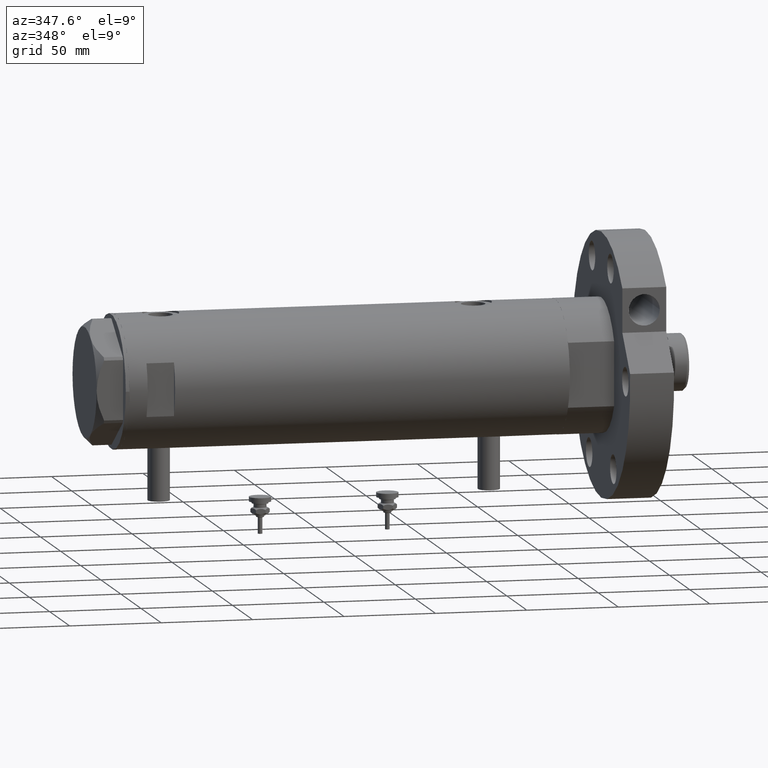
[diagram: clean part render]
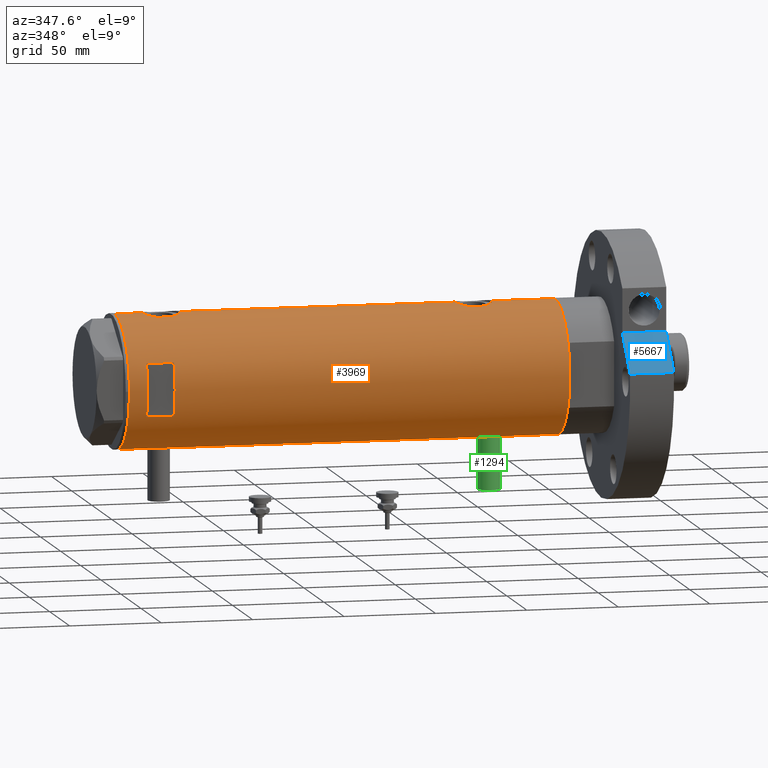
[diagram: same view with three faces highlighted in distinct colors, each labeled with its STEP entity id]
A machine part, auxiliary view with three faces highlighted in distinct colors.
Their STEP definitions:

[orange] entity #3969 — the highlighted cylindrical surface (partial cylindrical patch) has radius 36.5 mm, axis along (-1, -0, 0).
#9 = CARTESIAN_POINT ( 'NONE',  ( 35.52320828895289395, -8.411622242316134646, -81.09772865944610487 ) ) ;
#25 = DIRECTION ( 'NONE',  ( 0.000000000000000000, 0.000000000000000000, 1.000000000000000000 ) ) ;
#28 = EDGE_CURVE ( 'NONE', #5902, #6856, #4608, .T. ) ;
#66 = CARTESIAN_POINT ( 'NONE',  ( -36.30176144752229561, -3.814344296723636951, -89.06801701950256245 ) ) ;
#107 = DIRECTION ( 'NONE',  ( -0.000000000000000000, 0.000000000000000000, -1.000000000000000000 ) ) ;
#112 = CARTESIAN_POINT ( 'NONE',  ( 36.44931971524465553, -1.985988150549293341, 105.2136686053176078 ) ) ;
#143 = CARTESIAN_POINT ( 'NONE',  ( -36.06543684817881257, -5.617774235967367247, -81.33045552028302438 ) ) ;
#180 = CARTESIAN_POINT ( 'NONE',  ( -36.30107494031872051, -3.820993528321233068, -79.13693846463692694 ) ) ;
#214 = CARTESIAN_POINT ( 'NONE',  ( -36.06605150775667568, -5.613853192123348101, -86.87765688272544651 ) ) ;
#218 = ORIENTED_EDGE ( 'NONE', *, *, #6239, .F. ) ;
#256 = LINE ( 'NONE', #4935, #4260 ) ;
#363 = CARTESIAN_POINT ( 'NONE',  ( -36.49297138689434661, -0.8222528563518530786, -77.89066887946569295 ) ) ;
#398 = CARTESIAN_POINT ( 'NONE',  ( -36.01675918113430441, -5.920026275461277798, 94.38560443482110429 ) ) ;
#415 = ORIENTED_EDGE ( 'NONE', *, *, #932, .F. ) ;
#425 = CARTESIAN_POINT ( 'NONE',  ( 36.09633718678917802, -5.417295330713078449, -67.19085132654788595 ) ) ;
#429 = CARTESIAN_POINT ( 'NONE',  ( 36.50000000000000000, 0.000000000000000000, -85.59999999999999432 ) ) ;
#434 = CARTESIAN_POINT ( 'NONE',  ( -35.98821803976956346, -6.090959022952117330, 97.81573883149417270 ) ) ;
#468 = CARTESIAN_POINT ( 'NONE',  ( -35.96794010939611752, -6.209972807992079069, 97.21555548991356943 ) ) ;
#487 = CARTESIAN_POINT ( 'NONE',  ( 35.72742963626381396, -7.471989379615407323, 88.74937739587225849 ) ) ;
#501 = CARTESIAN_POINT ( 'NONE',  ( 35.29999999999999716, -9.282241108697837362, -79.32021504754763441 ) ) ;
#502 = CIRCLE ( 'NONE', #2969, 36.50000000000000000 ) ;
#506 = CARTESIAN_POINT ( 'NONE',  ( -36.01639592019625979, -5.922235714778421034, 98.40796802426915235 ) ) ;
#513 = DIRECTION ( 'NONE',  ( -0.000000000000000000, -0.000000000000000000, -1.000000000000000000 ) ) ;
#532 = CARTESIAN_POINT ( 'NONE',  ( 36.12724769814495573, -5.207618053557754756, -67.05935879511537223 ) ) ;
#545 = CARTESIAN_POINT ( 'NONE',  ( -36.50000000000000000, 1.603939656238031057E-15, 102.6500000000000199 ) ) ;
#549 = CARTESIAN_POINT ( 'NONE',  ( -36.50000000000000000, 4.469960816887838430E-15, -120.4000000000000057 ) ) ;
#564 = CARTESIAN_POINT ( 'NONE',  ( 36.12724769814495573, -5.207618053557754756, 103.9406412048846704 ) ) ;
#645 = CARTESIAN_POINT ( 'NONE',  ( 36.09633718678917802, -5.417295330713078449, 103.8091486734521283 ) ) ;
#672 = CARTESIAN_POINT ( 'NONE',  ( -35.98855750525641639, -6.088954600884530777, -85.52430226150170256 ) ) ;
#719 = CARTESIAN_POINT ( 'NONE',  ( -36.02823773219768810, -5.849994928883552880, -86.30955101485642444 ) ) ;
#729 = CARTESIAN_POINT ( 'NONE',  ( 35.72583162417570435, -7.484316398521980496, 102.0504264371950143 ) ) ;
#774 = ORIENTED_EDGE ( 'NONE', *, *, #901, .T. ) ;
#797 = ORIENTED_EDGE ( 'NONE', *, *, #3215, .F. ) ;
#807 = B_SPLINE_CURVE_WITH_KNOTS ( 'NONE', 3,
 ( #894, #4413, #4519, #4561, #6207, #3385, #1013, #3419, #3958, #532, #425, #6925, #3460, #2204, #2313, #7555, #5138, #5777 ),
 .UNSPECIFIED., .F., .F.,
 ( 4, 2, 2, 2, 2, 2, 2, 2, 4 ),
 ( 0.01190956515753145012, 0.01339852714138290227, 0.01488748912523435441, 0.01637645110908580656, 0.01712093210101153090, 0.01786541309293725871, 0.01935437507678870739, 0.02084333706064015260, 0.02382126102834301526 ),
 .UNSPECIFIED. ) ;
#854 = VERTEX_POINT ( 'NONE', #7006 ) ;
#894 = CARTESIAN_POINT ( 'NONE',  ( 36.50000000000000000, 4.344614706140975428E-19, -65.60000000000000853 ) ) ;
#901 = EDGE_CURVE ( 'NONE', #5500, #2793, #6355, .T. ) ;
#932 = EDGE_CURVE ( 'NONE', #6315, #3876, #3515, .T. ) ;
#940 = EDGE_CURVE ( 'NONE', #1942, #5902, #3516, .T. ) ;
#969 = ORIENTED_EDGE ( 'NONE', *, *, #28, .F. ) ;
#975 = EDGE_CURVE ( 'NONE', #4475, #1970, #5960, .T. ) ;
#984 = CARTESIAN_POINT ( 'NONE',  ( -36.19599073318030236, -4.702920041824403263, 100.5215383167658274 ) ) ;
#1013 = CARTESIAN_POINT ( 'NONE',  ( 36.29582892817134621, -3.881628320031159873, -66.37065565465010764 ) ) ;
#1025 = CARTESIAN_POINT ( 'NONE',  ( -36.50000000000000000, 1.603939656238031057E-15, 102.6500000000000199 ) ) ;
#1054 = CARTESIAN_POINT ( 'NONE',  ( 36.50000000000000711, -0.5031001875915692700, -85.59999999999999432 ) ) ;
#1078 = CARTESIAN_POINT ( 'NONE',  ( 35.29999999999999716, -9.282241108697837362, 91.67978495245237980 ) ) ;
#1087 = ORIENTED_EDGE ( 'NONE', *, *, #4711, .T. ) ;
#1098 = CARTESIAN_POINT ( 'NONE',  ( -35.96087392089862789, -6.250243747806517369, 96.80917490776182888 ) ) ;
#1153 = ORIENTED_EDGE ( 'NONE', *, *, #1193, .F. ) ;
#1172 = CARTESIAN_POINT ( 'NONE',  ( 35.79656810172926384, -7.133411935499478496, -82.61254878557676307 ) ) ;
#1191 = CARTESIAN_POINT ( 'NONE',  ( -36.50000000000000000, 4.469960816887838430E-15, -120.4000000000000057 ) ) ;
#1193 = EDGE_CURVE ( 'NONE', #2616, #4398, #5650, .T. ) ;
#1231 = CARTESIAN_POINT ( 'NONE',  ( 36.41856252531823657, -2.482507212621166470, 85.70043487153495221 ) ) ;
#1236 = CARTESIAN_POINT ( 'NONE',  ( 36.50000000000000711, -0.4962708696651116913, 105.4000000000000199 ) ) ;
#1245 = CARTESIAN_POINT ( 'NONE',  ( 0.000000000000000000, 0.000000000000000000, 95.40000000000014779 ) ) ;
#1306 = VERTEX_POINT ( 'NONE', #6802 ) ;
#1314 = ORIENTED_EDGE ( 'NONE', *, *, #6376, .T. ) ;
#1339 = CARTESIAN_POINT ( 'NONE',  ( -36.19599073318030236, -4.702920041824403263, -79.97846168323422944 ) ) ;
#1345 = CARTESIAN_POINT ( 'NONE',  ( 36.50000000000000000, 0.000000000000000000, 85.40000000000001990 ) ) ;
#1394 = DIRECTION ( 'NONE',  ( 1.000000000000000000, 0.000000000000000000, 0.000000000000000000 ) ) ;
#1419 = CARTESIAN_POINT ( 'NONE',  ( 35.29999999999999716, -9.282241108697837362, -71.87978495245236843 ) ) ;
#1428 = CARTESIAN_POINT ( 'NONE',  ( 0.000000000000000000, 0.000000000000000000, -120.4000000000000057 ) ) ;
#1461 = CARTESIAN_POINT ( 'NONE',  ( -36.50000000000000000, 1.603939656238031057E-15, -77.85000000000000853 ) ) ;
#1495 = CARTESIAN_POINT ( 'NONE',  ( -36.46417279006304568, -1.628689148039109247, -78.06246061306184458 ) ) ;
#1523 = CARTESIAN_POINT ( 'NONE',  ( -36.50000000000000000, 4.469960816887838430E-15, -120.4000000000000057 ) ) ;
#1559 = CARTESIAN_POINT ( 'NONE',  ( -35.99695583620881933, -6.039273428153905776, 94.77775555012246400 ) ) ;
#1582 = CARTESIAN_POINT ( 'NONE',  ( 36.50000000000000000, 4.344614706140975428E-19, 105.4000000000000057 ) ) ;
#1632 = CARTESIAN_POINT ( 'NONE',  ( 36.44881677724178104, -1.995085670027227032, -85.41180345369463112 ) ) ;
#1634 = EDGE_CURVE ( 'NONE', #1970, #2231, #6276, .T. ) ;
#1667 = CARTESIAN_POINT ( 'NONE',  ( 36.18850502651835654, -4.779575967213809840, -84.39779152890152147 ) ) ;
#1691 = CARTESIAN_POINT ( 'NONE',  ( 36.00068527486601511, -6.030855700422090848, 87.40798672872648467 ) ) ;
#1711 = CARTESIAN_POINT ( 'NONE',  ( -35.96095902952617251, -6.249754054240900913, 95.98341234579532966 ) ) ;
#1733 = CARTESIAN_POINT ( 'NONE',  ( 36.29527920868844859, -3.886508670267145416, 86.17283724169139703 ) ) ;
#1760 = EDGE_CURVE ( 'NONE', #6643, #3876, #3013, .T. ) ;
#1803 = CARTESIAN_POINT ( 'NONE',  ( -35.99659093586380010, -6.041447834568799635, -82.48577587985177217 ) ) ;
#1812 = CARTESIAN_POINT ( 'NONE',  ( 14.49137674618942739, -33.50000000000000000, 110.3999999999999915 ) ) ;
#1842 = CARTESIAN_POINT ( 'NONE',  ( -36.26692673949090562, -4.128477002029503851, -88.80999987432169007 ) ) ;
#1863 = AXIS2_PLACEMENT_3D ( 'NONE', #4616, #3979, #6956 ) ;
#1885 = CARTESIAN_POINT ( 'NONE',  ( -36.16096637594732499, -4.968588355849258953, -87.91334492817760804 ) ) ;
#1906 = CARTESIAN_POINT ( 'NONE',  ( 0.000000000000000000, 0.000000000000000000, -120.4000000000000057 ) ) ;
#1923 = CARTESIAN_POINT ( 'NONE',  ( -36.16125812922425098, -4.962923794285024393, -80.29553914089240152 ) ) ;
#1942 = VERTEX_POINT ( 'NONE', #1812 ) ;
#1945 = EDGE_CURVE ( 'NONE', #5500, #6048, #2730, .T. ) ;
#1962 = CARTESIAN_POINT ( 'NONE',  ( -36.39621039793029666, -2.776267550998806843, -78.48569246893224260 ) ) ;
#1970 = VERTEX_POINT ( 'NONE', #4125 ) ;
#1974 = DIRECTION ( 'NONE',  ( 0.000000000000000000, 0.000000000000000000, 1.000000000000000000 ) ) ;
#2006 = VERTEX_POINT ( 'NONE', #6458 ) ;
#2047 = EDGE_CURVE ( 'NONE', #4398, #4475, #5084, .T. ) ;
#2074 = LINE ( 'NONE', #2181, #3318 ) ;
#2110 = CARTESIAN_POINT ( 'NONE',  ( -36.49999999999999289, -0.4082012689449562859, 90.15000000000001990 ) ) ;
#2113 = EDGE_CURVE ( 'NONE', #1306, #1942, #256, .T. ) ;
#2147 = CARTESIAN_POINT ( 'NONE',  ( -36.36635911126388265, -3.125815113635437292, 90.98394399592098125 ) ) ;
#2174 = CARTESIAN_POINT ( 'NONE',  ( -36.16096637594732499, -4.968588355849258953, 92.58665507182242038 ) ) ;
#2181 = CARTESIAN_POINT ( 'NONE',  ( -36.50000000000000000, 4.469960816887838430E-15, -120.4000000000000057 ) ) ;
#2204 = CARTESIAN_POINT ( 'NONE',  ( 35.79638309643555516, -7.141827709208434349, -68.58298073030452713 ) ) ;
#2212 = CARTESIAN_POINT ( 'NONE',  ( -36.30107494031872051, -3.820993528321233068, 101.3630615353631157 ) ) ;
#2231 = VERTEX_POINT ( 'NONE', #545 ) ;
#2261 = DIRECTION ( 'NONE',  ( 0.000000000000000000, 0.000000000000000000, 1.000000000000000000 ) ) ;
#2271 = CARTESIAN_POINT ( 'NONE',  ( 35.83108131285856501, -6.958268797611358636, 88.21369216627178389 ) ) ;
#2282 = CARTESIAN_POINT ( 'NONE',  ( 35.29999999999999716, -9.282241108697837362, 91.67978495245237980 ) ) ;
#2306 = CARTESIAN_POINT ( 'NONE',  ( 36.12792682573228831, -5.214735277442335004, 86.85306882011300900 ) ) ;
#2313 = CARTESIAN_POINT ( 'NONE',  ( 35.72583162417570435, -7.484316398521980496, -68.94957356280497152 ) ) ;
#2332 = CARTESIAN_POINT ( 'NONE',  ( 35.29999999999999716, -9.282241108697837362, -120.4000000000000057 ) ) ;
#2347 = CIRCLE ( 'NONE', #2946, 36.50000000000000000 ) ;
#2361 = CARTESIAN_POINT ( 'NONE',  ( 36.29527920868844859, -3.886508670267145416, -84.82716275830861719 ) ) ;
#2431 = CARTESIAN_POINT ( 'NONE',  ( -14.49137674618942739, -33.50000000000000000, 95.40000000000000568 ) ) ;
#2442 = DIRECTION ( 'NONE',  ( 0.000000000000000000, 0.000000000000000000, 1.000000000000000000 ) ) ;
#2466 = DIRECTION ( 'NONE',  ( 1.000000000000000000, 0.000000000000000000, 0.000000000000000000 ) ) ;
#2471 = CARTESIAN_POINT ( 'NONE',  ( 36.21540437201188922, -4.554727782332258279, 104.3059762908862638 ) ) ;
#2485 = DIRECTION ( 'NONE',  ( 1.000000000000000000, 0.000000000000000000, 0.000000000000000000 ) ) ;
#2492 = CARTESIAN_POINT ( 'NONE',  ( 35.29999999999999716, -9.282241108697837362, 99.12021504754764578 ) ) ;
#2501 = CARTESIAN_POINT ( 'NONE',  ( -36.09514898390870030, -5.426114745500164815, -80.97161347053862812 ) ) ;
#2509 = CARTESIAN_POINT ( 'NONE',  ( 36.41918031349423757, -2.473644131148923009, 105.1018834546319027 ) ) ;
#2544 = CARTESIAN_POINT ( 'NONE',  ( 36.48960339336947101, -1.002724032967601708, 85.43775134026506635 ) ) ;
#2591 = CARTESIAN_POINT ( 'NONE',  ( 36.50000000000000000, 4.344614706140975428E-19, -65.60000000000000853 ) ) ;
#2616 = VERTEX_POINT ( 'NONE', #1523 ) ;
#2718 = CARTESIAN_POINT ( 'NONE',  ( -36.06605150775667568, -5.613853192123348101, 93.62234311727458191 ) ) ;
#2724 = CARTESIAN_POINT ( 'NONE',  ( -36.44454782745417276, -2.020757099930494682, -78.18214135579003710 ) ) ;
#2730 = B_SPLINE_CURVE_WITH_KNOTS ( 'NONE', 3,
 ( #6547, #1236, #4174, #112, #2509, #3570, #5240, #2471, #5892, #564, #645, #7008, #5317, #3001, #729, #6513, #4103, #3072 ),
 .UNSPECIFIED., .F., .F.,
 ( 4, 2, 2, 2, 2, 2, 2, 2, 4 ),
 ( 0.01190956515753145012, 0.01339852714138290227, 0.01488748912523435441, 0.01637645110908580656, 0.01712093210101153090, 0.01786541309293725871, 0.01935437507678870739, 0.02084333706064015260, 0.02382126102834301526 ),
 .UNSPECIFIED. ) ;
#2754 = CARTESIAN_POINT ( 'NONE',  ( -35.96816095843705341, -6.208699946936198977, 95.57503622872209803 ) ) ;
#2793 = VERTEX_POINT ( 'NONE', #5354 ) ;
#2797 = AXIS2_PLACEMENT_3D ( 'NONE', #4863, #107, #2466 ) ;
#2825 = CARTESIAN_POINT ( 'NONE',  ( -35.99659093586380010, -6.041447834568799635, 98.01422412014827046 ) ) ;
#2832 = ORIENTED_EDGE ( 'NONE', *, *, #4109, .F. ) ;
#2857 = CARTESIAN_POINT ( 'NONE',  ( 36.48960339336947101, -1.002724032967601708, -85.56224865973499050 ) ) ;
#2875 = CARTESIAN_POINT ( 'NONE',  ( -14.49137674618942739, -33.50000000000000000, 110.3999999999999915 ) ) ;
#2906 = CARTESIAN_POINT ( 'NONE',  ( 35.29999999999999716, -9.282241108697837362, -120.4000000000000057 ) ) ;
#2946 = AXIS2_PLACEMENT_3D ( 'NONE', #1245, #5897, #3006 ) ;
#2955 = VECTOR ( 'NONE', #2442, 1000.000000000000000 ) ;
#2966 = CARTESIAN_POINT ( 'NONE',  ( -36.50000000000000000, 4.469960493350315609E-15, -90.35000000000000853 ) ) ;
#2969 = AXIS2_PLACEMENT_3D ( 'NONE', #1428, #1974, #1394 ) ;
#2992 = CARTESIAN_POINT ( 'NONE',  ( -36.35061318816141096, -3.303361544904982239, -89.40964041943020391 ) ) ;
#2996 = ORIENTED_EDGE ( 'NONE', *, *, #2047, .F. ) ;
#3001 = CARTESIAN_POINT ( 'NONE',  ( 35.79638309643555516, -7.141827709208434349, 102.4170192696955013 ) ) ;
#3006 = DIRECTION ( 'NONE',  ( 1.776356839400250465E-15, 1.000000000000000000, 4.562560375171875891E-15 ) ) ;
#3013 = LINE ( 'NONE', #5219, #4137 ) ;
#3021 = CARTESIAN_POINT ( 'NONE',  ( -35.96816095843705341, -6.208699946936198977, -84.92496377127787355 ) ) ;
#3041 = CARTESIAN_POINT ( 'NONE',  ( 36.50000000000000000, 0.000000000000000000, -120.4000000000000057 ) ) ;
#3061 = CARTESIAN_POINT ( 'NONE',  ( -36.01675918113430441, -5.920026275461277798, -86.11439556517892413 ) ) ;
#3072 = CARTESIAN_POINT ( 'NONE',  ( 35.29999999999999716, -9.282241108697837362, 99.12021504754764578 ) ) ;
#3135 = CARTESIAN_POINT ( 'NONE',  ( -36.44621655743049615, -2.016281777336074832, 90.47017023300885796 ) ) ;
#3215 = EDGE_CURVE ( 'NONE', #2231, #854, #2074, .T. ) ;
#3283 = CARTESIAN_POINT ( 'NONE',  ( -36.21356728133255842, -4.566014386638764577, 100.6726266076474730 ) ) ;
#3318 = VECTOR ( 'NONE', #7351, 1000.000000000000000 ) ;
#3329 = CARTESIAN_POINT ( 'NONE',  ( -36.40915499150419521, -2.580495338846545472, 90.70394986644524238 ) ) ;
#3385 = CARTESIAN_POINT ( 'NONE',  ( 36.34247810649306132, -3.420510937483959513, -66.19013481598274495 ) ) ;
#3398 = VECTOR ( 'NONE', #4743, 1000.000000000000000 ) ;
#3419 = CARTESIAN_POINT ( 'NONE',  ( 36.21540437201188922, -4.554727782332258279, -66.69402370911377886 ) ) ;
#3429 = CARTESIAN_POINT ( 'NONE',  ( -36.06543684817881257, -5.617774235967367247, 99.16954447971704667 ) ) ;
#3460 = CARTESIAN_POINT ( 'NONE',  ( 35.93373217836897737, -6.415110096330620237, -67.91295733644906818 ) ) ;
#3474 = ORIENTED_EDGE ( 'NONE', *, *, #2113, .F. ) ;
#3488 = CARTESIAN_POINT ( 'NONE',  ( 35.79656810172926384, -7.133411935499478496, 88.38745121442323693 ) ) ;
#3500 = CARTESIAN_POINT ( 'NONE',  ( 36.34184199234172041, -3.427106516421255744, -85.00740913680034794 ) ) ;
#3515 = B_SPLINE_CURVE_WITH_KNOTS ( 'NONE', 3,
 ( #1078, #5656, #4587, #5733, #487, #3488, #2271, #6392, #1691, #2306, #6963, #1733, #4064, #1231, #4170, #2544, #6582, #1345 ),
 .UNSPECIFIED., .F., .F.,
 ( 4, 2, 2, 2, 2, 2, 2, 2, 4 ),
 ( -0.01189883390545606531, -0.008924125429092034240, -0.008180448310001031675, -0.007436771190910029979, -0.005949416952728023983, -0.004462062714546017987, -0.002974708476364010257, -0.001487354238182005128, 1.734723475976807094E-18 ),
 .UNSPECIFIED. ) ;
#3516 = CIRCLE ( 'NONE', #2797, 36.50000000000000000 ) ;
#3561 = CARTESIAN_POINT ( 'NONE',  ( -36.49999999999999289, -0.4082012689449562859, -90.34999999999998010 ) ) ;
#3570 = CARTESIAN_POINT ( 'NONE',  ( 36.34247810649306132, -3.420510937483959513, 104.8098651840172977 ) ) ;
#3597 = CARTESIAN_POINT ( 'NONE',  ( -36.39558535855674393, -2.764807686268001774, -89.70894118545612628 ) ) ;
#3635 = CARTESIAN_POINT ( 'NONE',  ( -36.49315367594273596, -0.8144497809045447845, -90.31039785554752086 ) ) ;
#3715 = CARTESIAN_POINT ( 'NONE',  ( -36.49315367594273596, -0.8144497809045447845, 90.18960214445247914 ) ) ;
#3717 = CARTESIAN_POINT ( 'NONE',  ( -36.36656776002988778, -3.137002187003158582, -78.67863590726369694 ) ) ;
#3774 = CARTESIAN_POINT ( 'NONE',  ( 36.50000000000000000, 0.000000000000000000, -120.4000000000000057 ) ) ;
#3876 = VERTEX_POINT ( 'NONE', #6523 ) ;
#3893 = CARTESIAN_POINT ( 'NONE',  ( -36.39558535855674393, -2.764807686268001774, 90.79105881454391636 ) ) ;
#3958 = CARTESIAN_POINT ( 'NONE',  ( 36.18674680775578167, -4.776679548204626258, -66.81107683068754000 ) ) ;
#3968 = CARTESIAN_POINT ( 'NONE',  ( -36.26616882068471170, -4.135065845178865551, 101.1041505594009635 ) ) ;
#3969 = ADVANCED_FACE ( 'NONE', ( #5327, #5977 ), #5938, .T. ) ;
#3979 = DIRECTION ( 'NONE',  ( 0.000000000000000000, 0.000000000000000000, 1.000000000000000000 ) ) ;
#4019 = CARTESIAN_POINT ( 'NONE',  ( 36.50000000000000000, 0.000000000000000000, -120.4000000000000057 ) ) ;
#4039 = CARTESIAN_POINT ( 'NONE',  ( -36.16125812922425098, -4.962923794285024393, 100.2044608591076127 ) ) ;
#4064 = CARTESIAN_POINT ( 'NONE',  ( 36.34184199234172041, -3.427106516421255744, 85.99259086319968048 ) ) ;
#4073 = CARTESIAN_POINT ( 'NONE',  ( 35.39794035667548400, -8.909777761736840773, -80.24954159089453753 ) ) ;
#4103 = CARTESIAN_POINT ( 'NONE',  ( 35.39807338191549491, -8.909271871950329214, 100.0508038273278544 ) ) ;
#4109 = EDGE_CURVE ( 'NONE', #6643, #7326, #807, .T. ) ;
#4120 = LINE ( 'NONE', #2332, #5268 ) ;
#4125 = CARTESIAN_POINT ( 'NONE',  ( -36.50000000000000000, 4.469960493350315609E-15, 90.15000000000000568 ) ) ;
#4137 = VECTOR ( 'NONE', #6446, 1000.000000000000000 ) ;
#4165 = CARTESIAN_POINT ( 'NONE',  ( -36.09582946723050867, -5.421573071064194060, -87.23608278370488733 ) ) ;
#4170 = CARTESIAN_POINT ( 'NONE',  ( 36.44881677724178104, -1.995085670027227032, 85.58819654630534046 ) ) ;
#4174 = CARTESIAN_POINT ( 'NONE',  ( 36.48988302519020266, -0.9927202255321166957, 105.3632698941130172 ) ) ;
#4200 = CARTESIAN_POINT ( 'NONE',  ( -36.02782481185206365, -5.852531070448506512, -81.89722991047811718 ) ) ;
#4260 = VECTOR ( 'NONE', #7238, 1000.000000000000000 ) ;
#4272 = CARTESIAN_POINT ( 'NONE',  ( -36.43335814606993495, -2.212659578761325463, -78.25123600830491455 ) ) ;
#4273 = ORIENTED_EDGE ( 'NONE', *, *, #1634, .F. ) ;
#4349 = CARTESIAN_POINT ( 'NONE',  ( -36.47262891311153510, -1.427622242603855396, -78.01175370788301677 ) ) ;
#4384 = ORIENTED_EDGE ( 'NONE', *, *, #5761, .F. ) ;
#4387 = CARTESIAN_POINT ( 'NONE',  ( -36.50000000000001421, -0.4136690418839317762, -77.85000000000002274 ) ) ;
#4398 = VERTEX_POINT ( 'NONE', #2966 ) ;
#4413 = CARTESIAN_POINT ( 'NONE',  ( 36.50000000000000711, -0.4962708696651116913, -65.60000000000000853 ) ) ;
#4464 = CARTESIAN_POINT ( 'NONE',  ( -36.09582946723050867, -5.421573071064194060, 93.26391721629518372 ) ) ;
#4475 = VERTEX_POINT ( 'NONE', #1461 ) ;
#4494 = CARTESIAN_POINT ( 'NONE',  ( -36.30176144752229561, -3.814344296723636951, 91.43198298049746597 ) ) ;
#4519 = CARTESIAN_POINT ( 'NONE',  ( 36.48988302519020266, -0.9927202255321166957, -65.63673010588698276 ) ) ;
#4530 = CARTESIAN_POINT ( 'NONE',  ( -36.09514898390870030, -5.426114745500164815, 99.52838652946141451 ) ) ;
#4552 = DIRECTION ( 'NONE',  ( 0.000000000000000000, 0.000000000000000000, 1.000000000000000000 ) ) ;
#4561 = CARTESIAN_POINT ( 'NONE',  ( 36.44931971524465553, -1.985988150549293341, -65.78633139468234958 ) ) ;
#4583 = ORIENTED_EDGE ( 'NONE', *, *, #7083, .T. ) ;
#4587 = CARTESIAN_POINT ( 'NONE',  ( 35.52320828895289395, -8.411622242316134646, 89.90227134055388092 ) ) ;
#4603 = CARTESIAN_POINT ( 'NONE',  ( -36.36656776002988778, -3.137002187003158582, 101.8213640927363457 ) ) ;
#4608 = LINE ( 'NONE', #6270, #6680 ) ;
#4616 = CARTESIAN_POINT ( 'NONE',  ( 0.000000000000000000, 0.000000000000000000, 120.4000000000000057 ) ) ;
#4645 = EDGE_CURVE ( 'NONE', #6280, #7326, #4120, .T. ) ;
#4711 = EDGE_CURVE ( 'NONE', #6315, #6048, #7538, .T. ) ;
#4721 = LINE ( 'NONE', #3041, #2955 ) ;
#4737 = CARTESIAN_POINT ( 'NONE',  ( -36.44621655743049615, -2.016281777336074832, -90.02982976699115625 ) ) ;
#4743 = DIRECTION ( 'NONE',  ( 0.000000000000000000, 0.000000000000000000, 1.000000000000000000 ) ) ;
#4746 = B_SPLINE_CURVE_WITH_KNOTS ( 'NONE', 3,
 ( #6862, #4073, #9, #6404, #5212, #1172, #6368, #7526, #6897, #6297, #1667, #2361, #3500, #5819, #1632, #2857, #1054, #429 ),
 .UNSPECIFIED., .F., .F.,
 ( 4, 2, 2, 2, 2, 2, 2, 2, 4 ),
 ( -0.01189883390545606531, -0.008924125429092034240, -0.008180448310001031675, -0.007436771190910029979, -0.005949416952728023983, -0.004462062714546017987, -0.002974708476364010257, -0.001487354238182005128, 1.734723475976807094E-18 ),
 .UNSPECIFIED. ) ;
#4824 = CARTESIAN_POINT ( 'NONE',  ( -35.99695583620881933, -6.039273428153905776, -85.72224444987756442 ) ) ;
#4863 = CARTESIAN_POINT ( 'NONE',  ( 0.000000000000000000, 0.000000000000000000, 110.3999999999999915 ) ) ;
#4935 = CARTESIAN_POINT ( 'NONE',  ( 14.49137674618942739, -33.50000000000000000, -120.4000000000000057 ) ) ;
#4939 = ORIENTED_EDGE ( 'NONE', *, *, #5910, .F. ) ;
#5072 = CARTESIAN_POINT ( 'NONE',  ( -36.49297138689434661, -0.8222528563518530786, 102.6093311205343923 ) ) ;
#5084 = B_SPLINE_CURVE_WITH_KNOTS ( 'NONE', 3,
 ( #5307, #3561, #3635, #5922, #4737, #5954, #3597, #5883, #2992, #66, #1842, #7075, #1885, #4165, #214, #719, #3061, #4824, #672, #3021, #7160, #7197, #5387, #7038, #1803, #5345, #4200, #143, #2501, #6039, #1923, #1339, #6002, #5421, #180, #3717, #1962, #4272, #2724, #1495, #4349, #363, #4387, #6076 ),
 .UNSPECIFIED., .F., .F.,
 ( 4, 2, 2, 2, 2, 2, 2, 2, 2, 2, 2, 2, 2, 2, 2, 2, 2, 2, 2, 2, 2, 4 ),
 ( 0.01957644481942643136, 0.02079966591703043266, 0.02202288701463443049, 0.02263449756343642941, 0.02324610811223842832, 0.02446932920984242615, 0.02569255030744642398, 0.02691577140505042529, 0.02752738195385242420, 0.02813899250265442659, 0.02936221360025846605, 0.03058543469786250205, 0.03119704524666452178, 0.03180865579546654498, 0.03303187689307057751, 0.03364348744187262152, 0.03425509799067465166, 0.03547831908827869807, 0.03670154018588274447, 0.03731315073468477461, 0.03792476128348679781, 0.03914798238109084422 ),
 .UNSPECIFIED. ) ;
#5105 = CARTESIAN_POINT ( 'NONE',  ( -36.35061318816141096, -3.303361544904982239, 91.09035958056982452 ) ) ;
#5138 = CARTESIAN_POINT ( 'NONE',  ( 35.39807338191549491, -8.909271871950329214, -70.94919617267213141 ) ) ;
#5148 = CARTESIAN_POINT ( 'NONE',  ( -36.50000000000001421, -0.4136690418839317762, 102.6500000000000341 ) ) ;
#5212 = CARTESIAN_POINT ( 'NONE',  ( 35.72742963626381396, -7.471989379615407323, -82.25062260412775572 ) ) ;
#5219 = CARTESIAN_POINT ( 'NONE',  ( 36.50000000000000000, 0.000000000000000000, -120.4000000000000057 ) ) ;
#5240 = CARTESIAN_POINT ( 'NONE',  ( 36.29582892817134621, -3.881628320031159873, 104.6293443453499066 ) ) ;
#5268 = VECTOR ( 'NONE', #25, 1000.000000000000000 ) ;
#5307 = CARTESIAN_POINT ( 'NONE',  ( -36.50000000000000000, 4.469960493350315609E-15, -90.35000000000000853 ) ) ;
#5317 = CARTESIAN_POINT ( 'NONE',  ( 35.93373217836897737, -6.415110096330620237, 103.0870426635509176 ) ) ;
#5327 = FACE_OUTER_BOUND ( 'NONE', #6359, .T. ) ;
#5345 = CARTESIAN_POINT ( 'NONE',  ( -36.01639592019625979, -5.922235714778421034, -82.09203197573087607 ) ) ;
#5354 = CARTESIAN_POINT ( 'NONE',  ( 36.50000000000000000, 0.000000000000000000, 120.4000000000000057 ) ) ;
#5387 = CARTESIAN_POINT ( 'NONE',  ( -35.96794010939611752, -6.209972807992079069, -83.28444451008648741 ) ) ;
#5421 = CARTESIAN_POINT ( 'NONE',  ( -36.26616882068471170, -4.135065845178865551, -79.39584944059912175 ) ) ;
#5426 = VERTEX_POINT ( 'NONE', #3774 ) ;
#5495 = ORIENTED_EDGE ( 'NONE', *, *, #4645, .T. ) ;
#5500 = VERTEX_POINT ( 'NONE', #1582 ) ;
#5600 = CARTESIAN_POINT ( 'NONE',  ( -36.39621039793029666, -2.776267550998806843, 102.0143075310678000 ) ) ;
#5641 = CARTESIAN_POINT ( 'NONE',  ( -36.26692673949090562, -4.128477002029503851, 91.69000012567835256 ) ) ;
#5650 = LINE ( 'NONE', #549, #5952 ) ;
#5656 = CARTESIAN_POINT ( 'NONE',  ( 35.39794035667548400, -8.909777761736840773, 90.75045840910549089 ) ) ;
#5733 = CARTESIAN_POINT ( 'NONE',  ( 35.69273631926343882, -7.635692914629149008, 88.93799804348513760 ) ) ;
#5761 = EDGE_CURVE ( 'NONE', #6856, #1306, #2347, .T. ) ;
#5777 = CARTESIAN_POINT ( 'NONE',  ( 35.29999999999999716, -9.282241108697837362, -71.87978495245236843 ) ) ;
#5819 = CARTESIAN_POINT ( 'NONE',  ( 36.41856252531823657, -2.482507212621166470, -85.29956512846501937 ) ) ;
#5883 = CARTESIAN_POINT ( 'NONE',  ( -36.36635911126388265, -3.125815113635437292, -89.51605600407906138 ) ) ;
#5892 = CARTESIAN_POINT ( 'NONE',  ( 36.18674680775578167, -4.776679548204626258, 104.1889231693125026 ) ) ;
#5897 = DIRECTION ( 'NONE',  ( -0.000000000000000000, -4.625929269271492422E-15, 1.000000000000000000 ) ) ;
#5902 = VERTEX_POINT ( 'NONE', #2875 ) ;
#5910 = EDGE_CURVE ( 'NONE', #854, #2793, #7476, .T. ) ;
#5922 = CARTESIAN_POINT ( 'NONE',  ( -36.46614432713124643, -1.622933015999963313, -90.14966597386847980 ) ) ;
#5938 = CYLINDRICAL_SURFACE ( 'NONE', #7096, 36.50000000000000000 ) ;
#5952 = VECTOR ( 'NONE', #6272, 1000.000000000000000 ) ;
#5954 = CARTESIAN_POINT ( 'NONE',  ( -36.40915499150419521, -2.580495338846545472, -89.79605013355480025 ) ) ;
#5960 = LINE ( 'NONE', #1191, #3398 ) ;
#5977 = FACE_BOUND ( 'NONE', #7490, .T. ) ;
#6002 = CARTESIAN_POINT ( 'NONE',  ( -36.21356728133255842, -4.566014386638764577, -79.82737339235254126 ) ) ;
#6035 = CARTESIAN_POINT ( 'NONE',  ( -36.46614432713124643, -1.622933015999963313, 90.35033402613153442 ) ) ;
#6039 = CARTESIAN_POINT ( 'NONE',  ( -36.14410773716529235, -5.085921866747754372, -80.46164121579529649 ) ) ;
#6048 = VERTEX_POINT ( 'NONE', #2492 ) ;
#6076 = CARTESIAN_POINT ( 'NONE',  ( -36.50000000000000000, 1.603939656238031057E-15, -77.85000000000000853 ) ) ;
#6082 = VECTOR ( 'NONE', #4552, 1000.000000000000000 ) ;
#6146 = CARTESIAN_POINT ( 'NONE',  ( -36.50000000000000000, 4.469960493350315609E-15, 90.15000000000000568 ) ) ;
#6207 = CARTESIAN_POINT ( 'NONE',  ( 36.41918031349423757, -2.473644131148923009, -65.89811654536809726 ) ) ;
#6216 = CARTESIAN_POINT ( 'NONE',  ( -36.02823773219768810, -5.849994928883552880, 94.19044898514356134 ) ) ;
#6223 = ORIENTED_EDGE ( 'NONE', *, *, #1945, .F. ) ;
#6239 = EDGE_CURVE ( 'NONE', #6280, #2006, #4746, .T. ) ;
#6263 = CARTESIAN_POINT ( 'NONE',  ( -35.98855750525641639, -6.088954600884530777, 94.97569773849834007 ) ) ;
#6270 = CARTESIAN_POINT ( 'NONE',  ( -14.49137674618942739, -33.50000000000000000, -120.4000000000000057 ) ) ;
#6272 = DIRECTION ( 'NONE',  ( 0.000000000000000000, 0.000000000000000000, 1.000000000000000000 ) ) ;
#6276 = B_SPLINE_CURVE_WITH_KNOTS ( 'NONE', 3,
 ( #6146, #2110, #3715, #6035, #3135, #3329, #3893, #2147, #5105, #4494, #5641, #7454, #2174, #4464, #2718, #6216, #398, #1559, #6263, #2754, #1711, #1098, #468, #434, #2825, #506, #6372, #3429, #4530, #6940, #4039, #984, #3283, #3968, #2212, #4603, #5600, #7421, #6301, #6827, #7386, #5072, #5148, #1025 ),
 .UNSPECIFIED., .F., .F.,
 ( 4, 2, 2, 2, 2, 2, 2, 2, 2, 2, 2, 2, 2, 2, 2, 2, 2, 2, 2, 2, 2, 4 ),
 ( 0.01957644481942643136, 0.02079966591703043266, 0.02202288701463443049, 0.02263449756343642941, 0.02324610811223842832, 0.02446932920984242615, 0.02569255030744642398, 0.02691577140505042529, 0.02752738195385242420, 0.02813899250265442659, 0.02936221360025846605, 0.03058543469786250205, 0.03119704524666452178, 0.03180865579546654498, 0.03303187689307057751, 0.03364348744187262152, 0.03425509799067465166, 0.03547831908827869807, 0.03670154018588274447, 0.03731315073468477461, 0.03792476128348679781, 0.03914798238109084422 ),
 .UNSPECIFIED. ) ;
#6280 = VERTEX_POINT ( 'NONE', #501 ) ;
#6297 = CARTESIAN_POINT ( 'NONE',  ( 36.12792682573228831, -5.214735277442335004, -84.14693117988699100 ) ) ;
#6301 = CARTESIAN_POINT ( 'NONE',  ( -36.44454782745417276, -2.020757099930494682, 102.3178586442099913 ) ) ;
#6315 = VERTEX_POINT ( 'NONE', #2282 ) ;
#6353 = ORIENTED_EDGE ( 'NONE', *, *, #975, .F. ) ;
#6355 = LINE ( 'NONE', #4019, #6082 ) ;
#6359 = EDGE_LOOP ( 'NONE', ( #1153, #4583, #1314, #218, #5495, #2832, #7079, #415, #1087, #6223, #774, #4939, #797, #4273, #6353, #2996 ) ) ;
#6368 = CARTESIAN_POINT ( 'NONE',  ( 35.83108131285856501, -6.958268797611358636, -82.78630783372825874 ) ) ;
#6372 = CARTESIAN_POINT ( 'NONE',  ( -36.02782481185206365, -5.852531070448506512, 98.60277008952193967 ) ) ;
#6376 = EDGE_CURVE ( 'NONE', #5426, #2006, #4721, .T. ) ;
#6392 = CARTESIAN_POINT ( 'NONE',  ( 35.93363298843768661, -6.415574104180976178, 87.71348527111109661 ) ) ;
#6404 = CARTESIAN_POINT ( 'NONE',  ( 35.69273631926343882, -7.635692914629149008, -82.06200195651489082 ) ) ;
#6446 = DIRECTION ( 'NONE',  ( 0.000000000000000000, 0.000000000000000000, 1.000000000000000000 ) ) ;
#6458 = CARTESIAN_POINT ( 'NONE',  ( 36.50000000000000000, 0.000000000000000000, -85.59999999999999432 ) ) ;
#6513 = CARTESIAN_POINT ( 'NONE',  ( 35.52323553852023963, -8.411295122831250026, 100.8975239295108821 ) ) ;
#6523 = CARTESIAN_POINT ( 'NONE',  ( 36.50000000000000000, 0.000000000000000000, 85.40000000000001990 ) ) ;
#6547 = CARTESIAN_POINT ( 'NONE',  ( 36.50000000000000000, 4.344614706140975428E-19, 105.4000000000000057 ) ) ;
#6582 = CARTESIAN_POINT ( 'NONE',  ( 36.50000000000000711, -0.5031001875915692700, 85.40000000000004832 ) ) ;
#6596 = DIRECTION ( 'NONE',  ( 0.000000000000000000, 0.000000000000000000, 1.000000000000000000 ) ) ;
#6643 = VERTEX_POINT ( 'NONE', #2591 ) ;
#6680 = VECTOR ( 'NONE', #513, 1000.000000000000000 ) ;
#6742 = VECTOR ( 'NONE', #2261, 1000.000000000000000 ) ;
#6802 = CARTESIAN_POINT ( 'NONE',  ( 14.49137674618942739, -33.50000000000000000, 95.40000000000000568 ) ) ;
#6827 = CARTESIAN_POINT ( 'NONE',  ( -36.46417279006304568, -1.628689148039109247, 102.4375393869382123 ) ) ;
#6856 = VERTEX_POINT ( 'NONE', #2431 ) ;
#6862 = CARTESIAN_POINT ( 'NONE',  ( 35.29999999999999716, -9.282241108697837362, -79.32021504754763441 ) ) ;
#6897 = CARTESIAN_POINT ( 'NONE',  ( 36.00068527486601511, -6.030855700422090848, -83.59201327127354375 ) ) ;
#6925 = CARTESIAN_POINT ( 'NONE',  ( 36.00092304812866217, -6.029438422680412302, -67.60691844426347075 ) ) ;
#6940 = CARTESIAN_POINT ( 'NONE',  ( -36.14410773716529235, -5.085921866747754372, 100.0383587842047461 ) ) ;
#6956 = DIRECTION ( 'NONE',  ( 1.000000000000000000, 0.000000000000000000, 0.000000000000000000 ) ) ;
#6963 = CARTESIAN_POINT ( 'NONE',  ( 36.18850502651835654, -4.779575967213809840, 86.60220847109846432 ) ) ;
#7006 = CARTESIAN_POINT ( 'NONE',  ( -36.50000000000000000, 4.469960816887838430E-15, 120.4000000000000057 ) ) ;
#7008 = CARTESIAN_POINT ( 'NONE',  ( 36.00092304812866217, -6.029438422680412302, 103.3930815557365008 ) ) ;
#7038 = CARTESIAN_POINT ( 'NONE',  ( -35.98821803976956346, -6.090959022952117330, -82.68426116850582730 ) ) ;
#7075 = CARTESIAN_POINT ( 'NONE',  ( -36.19666146462960654, -4.704890678739094945, -88.23429859510781625 ) ) ;
#7079 = ORIENTED_EDGE ( 'NONE', *, *, #1760, .T. ) ;
#7083 = EDGE_CURVE ( 'NONE', #2616, #5426, #502, .T. ) ;
#7096 = AXIS2_PLACEMENT_3D ( 'NONE', #1906, #6596, #2485 ) ;
#7160 = CARTESIAN_POINT ( 'NONE',  ( -35.96095902952617251, -6.249754054240900913, -84.51658765420468455 ) ) ;
#7197 = CARTESIAN_POINT ( 'NONE',  ( -35.96087392089862789, -6.250243747806517369, -83.69082509223819955 ) ) ;
#7211 = ORIENTED_EDGE ( 'NONE', *, *, #940, .F. ) ;
#7238 = DIRECTION ( 'NONE',  ( 0.000000000000000000, 0.000000000000000000, 1.000000000000000000 ) ) ;
#7326 = VERTEX_POINT ( 'NONE', #1419 ) ;
#7351 = DIRECTION ( 'NONE',  ( 0.000000000000000000, 0.000000000000000000, 1.000000000000000000 ) ) ;
#7386 = CARTESIAN_POINT ( 'NONE',  ( -36.47262891311153510, -1.427622242603855396, 102.4882462921170259 ) ) ;
#7421 = CARTESIAN_POINT ( 'NONE',  ( -36.43335814606993495, -2.212659578761325463, 102.2487639916951281 ) ) ;
#7454 = CARTESIAN_POINT ( 'NONE',  ( -36.19666146462960654, -4.704890678739094945, 92.26570140489218375 ) ) ;
#7476 = CIRCLE ( 'NONE', #1863, 36.50000000000000000 ) ;
#7490 = EDGE_LOOP ( 'NONE', ( #4384, #969, #7211, #3474 ) ) ;
#7526 = CARTESIAN_POINT ( 'NONE',  ( 35.93363298843768661, -6.415574104180976178, -83.28651472888894602 ) ) ;
#7538 = LINE ( 'NONE', #2906, #6742 ) ;
#7555 = CARTESIAN_POINT ( 'NONE',  ( 35.52323553852023963, -8.411295122831250026, -70.10247607048910368 ) ) ;

[blue] entity #5667 — the highlighted planar face has unit normal (-0, 0.7071, -0.7071).
#95 = VECTOR ( 'NONE', #827, 1000.000000000000000 ) ;
#651 = CARTESIAN_POINT ( 'NONE',  ( 25.21805468567554698, 52.48511851279232587, 24.00000000000000000 ) ) ;
#819 = EDGE_CURVE ( 'NONE', #3614, #6462, #6741, .T. ) ;
#827 = DIRECTION ( 'NONE',  ( 0.7071067811865513475, -0.7071067811865436870, 0.000000000000000000 ) ) ;
#1132 = ORIENTED_EDGE ( 'NONE', *, *, #4461, .F. ) ;
#1392 = VECTOR ( 'NONE', #4535, 1000.000000000000000 ) ;
#1489 = VECTOR ( 'NONE', #1897, 1000.000000000000114 ) ;
#1502 = EDGE_CURVE ( 'NONE', #6462, #5694, #2572, .T. ) ;
#1516 = EDGE_LOOP ( 'NONE', ( #6318, #3736, #1132, #2964 ) ) ;
#1562 = LINE ( 'NONE', #3368, #1392 ) ;
#1866 = FACE_OUTER_BOUND ( 'NONE', #1516, .T. ) ;
#1897 = DIRECTION ( 'NONE',  ( 0.7071067811865513475, -0.7071067811865436870, -0.000000000000000000 ) ) ;
#2067 = CARTESIAN_POINT ( 'NONE',  ( 38.85158659923380498, 38.85158659923422420, 24.00000000000000000 ) ) ;
#2515 = DIRECTION ( 'NONE',  ( 0.7071067811865513475, -0.7071067811865436870, 0.000000000000000000 ) ) ;
#2572 = LINE ( 'NONE', #2067, #95 ) ;
#2964 = ORIENTED_EDGE ( 'NONE', *, *, #819, .T. ) ;
#3038 = DIRECTION ( 'NONE',  ( -0.7071067811865436870, -0.7071067811865513475, 0.000000000000000000 ) ) ;
#3368 = CARTESIAN_POINT ( 'NONE',  ( 25.21805468567554698, 52.48511851279232587, 0.000000000000000000 ) ) ;
#3558 = AXIS2_PLACEMENT_3D ( 'NONE', #7134, #3038, #2515 ) ;
#3581 = CARTESIAN_POINT ( 'NONE',  ( 5.949394898342027282, 71.75377830012563152, 24.00000000000000000 ) ) ;
#3614 = VERTEX_POINT ( 'NONE', #5638 ) ;
#3736 = ORIENTED_EDGE ( 'NONE', *, *, #7479, .F. ) ;
#4257 = VERTEX_POINT ( 'NONE', #6820 ) ;
#4461 = EDGE_CURVE ( 'NONE', #3614, #4257, #4753, .T. ) ;
#4535 = DIRECTION ( 'NONE',  ( -0.000000000000000000, -0.000000000000000000, 1.000000000000000000 ) ) ;
#4753 = LINE ( 'NONE', #5357, #1489 ) ;
#5357 = CARTESIAN_POINT ( 'NONE',  ( 25.21805468567554698, 52.48511851279232587, 0.000000000000000000 ) ) ;
#5585 = CARTESIAN_POINT ( 'NONE',  ( 5.949394898342027282, 71.75377830012563152, 0.000000000000000000 ) ) ;
#5638 = CARTESIAN_POINT ( 'NONE',  ( 5.949394898342027282, 71.75377830012563152, 0.000000000000000000 ) ) ;
#5667 = ADVANCED_FACE ( 'NONE', ( #1866 ), #5856, .F. ) ;
#5694 = VERTEX_POINT ( 'NONE', #651 ) ;
#5856 = PLANE ( 'NONE',  #3558 ) ;
#6200 = VECTOR ( 'NONE', #7365, 1000.000000000000000 ) ;
#6318 = ORIENTED_EDGE ( 'NONE', *, *, #1502, .T. ) ;
#6462 = VERTEX_POINT ( 'NONE', #3581 ) ;
#6741 = LINE ( 'NONE', #5585, #6200 ) ;
#6820 = CARTESIAN_POINT ( 'NONE',  ( 25.21805468567554698, 52.48511851279233298, 0.000000000000000000 ) ) ;
#7134 = CARTESIAN_POINT ( 'NONE',  ( 25.21805468567554698, 52.48511851279232587, 0.000000000000000000 ) ) ;
#7365 = DIRECTION ( 'NONE',  ( -0.000000000000000000, -0.000000000000000000, 1.000000000000000000 ) ) ;
#7479 = EDGE_CURVE ( 'NONE', #4257, #5694, #1562, .T. ) ;

[green] entity #1294 — the highlighted cylindrical surface (edge-blend (fillet) strip) has radius 6 mm, axis along (0, 0, 1).
#831 = VERTEX_POINT ( 'NONE', #2918 ) ;
#1203 = AXIS2_PLACEMENT_3D ( 'NONE', #6383, #2870, #6949 ) ;
#1275 = DIRECTION ( 'NONE',  ( -1.000000000000000000, 0.000000000000000000, 0.000000000000000000 ) ) ;
#1294 = ADVANCED_FACE ( 'NONE', ( #4472 ), #2836, .T. ) ;
#1409 = CARTESIAN_POINT ( 'NONE',  ( -35.29999999999999716, 0.000000000000000000, -90.10000000000000853 ) ) ;
#1471 = ORIENTED_EDGE ( 'NONE', *, *, #3888, .T. ) ;
#1741 = VERTEX_POINT ( 'NONE', #7103 ) ;
#1825 = DIRECTION ( 'NONE',  ( 1.000000000000000000, -0.000000000000000000, -0.000000000000000000 ) ) ;
#1886 = VERTEX_POINT ( 'NONE', #1409 ) ;
#1950 = EDGE_CURVE ( 'NONE', #2119, #1741, #7446, .T. ) ;
#2119 = VERTEX_POINT ( 'NONE', #3254 ) ;
#2177 = LINE ( 'NONE', #5680, #4439 ) ;
#2836 = CYLINDRICAL_SURFACE ( 'NONE', #1203, 6.000000000000005329 ) ;
#2870 = DIRECTION ( 'NONE',  ( 1.000000000000000000, -0.000000000000000000, -0.000000000000000000 ) ) ;
#2892 = ORIENTED_EDGE ( 'NONE', *, *, #1950, .F. ) ;
#2918 = CARTESIAN_POINT ( 'NONE',  ( -35.29999999999999716, 7.347880794884119736E-16, -78.10000000000000853 ) ) ;
#3254 = CARTESIAN_POINT ( 'NONE',  ( -65.00000000000000000, 0.000000000000000000, -90.10000000000000853 ) ) ;
#3607 = DIRECTION ( 'NONE',  ( 0.000000000000000000, 0.000000000000000000, 1.000000000000000000 ) ) ;
#3888 = EDGE_CURVE ( 'NONE', #2119, #1886, #7099, .T. ) ;
#4041 = VECTOR ( 'NONE', #1825, 1000.000000000000000 ) ;
#4112 = CARTESIAN_POINT ( 'NONE',  ( -65.00000000000000000, 0.000000000000000000, -90.10000000000000853 ) ) ;
#4397 = CARTESIAN_POINT ( 'NONE',  ( -35.29999999999999716, 0.000000000000000000, -84.10000000000000853 ) ) ;
#4439 = VECTOR ( 'NONE', #7391, 1000.000000000000000 ) ;
#4472 = FACE_OUTER_BOUND ( 'NONE', #5687, .T. ) ;
#5289 = ORIENTED_EDGE ( 'NONE', *, *, #7518, .F. ) ;
#5680 = CARTESIAN_POINT ( 'NONE',  ( -65.00000000000000000, 7.347880794884122694E-16, -78.10000000000000853 ) ) ;
#5687 = EDGE_LOOP ( 'NONE', ( #5289, #2892, #1471, #6762 ) ) ;
#6084 = DIRECTION ( 'NONE',  ( -1.000000000000000000, 0.000000000000000000, 0.000000000000000000 ) ) ;
#6134 = AXIS2_PLACEMENT_3D ( 'NONE', #4397, #6084, #6771 ) ;
#6213 = AXIS2_PLACEMENT_3D ( 'NONE', #6429, #1275, #3607 ) ;
#6383 = CARTESIAN_POINT ( 'NONE',  ( -65.00000000000000000, 0.000000000000000000, -84.10000000000000853 ) ) ;
#6429 = CARTESIAN_POINT ( 'NONE',  ( -65.00000000000000000, 0.000000000000000000, -84.10000000000000853 ) ) ;
#6762 = ORIENTED_EDGE ( 'NONE', *, *, #7035, .T. ) ;
#6771 = DIRECTION ( 'NONE',  ( 0.000000000000000000, 0.000000000000000000, 1.000000000000000000 ) ) ;
#6949 = DIRECTION ( 'NONE',  ( 0.000000000000000000, 0.000000000000000000, -1.000000000000000000 ) ) ;
#7035 = EDGE_CURVE ( 'NONE', #1886, #831, #7249, .T. ) ;
#7099 = LINE ( 'NONE', #4112, #4041 ) ;
#7103 = CARTESIAN_POINT ( 'NONE',  ( -65.00000000000000000, 7.347880794884119736E-16, -78.10000000000000853 ) ) ;
#7249 = CIRCLE ( 'NONE', #6134, 6.000000000000005329 ) ;
#7391 = DIRECTION ( 'NONE',  ( 1.000000000000000000, -0.000000000000000000, -0.000000000000000000 ) ) ;
#7446 = CIRCLE ( 'NONE', #6213, 6.000000000000005329 ) ;
#7518 = EDGE_CURVE ( 'NONE', #1741, #831, #2177, .T. ) ;